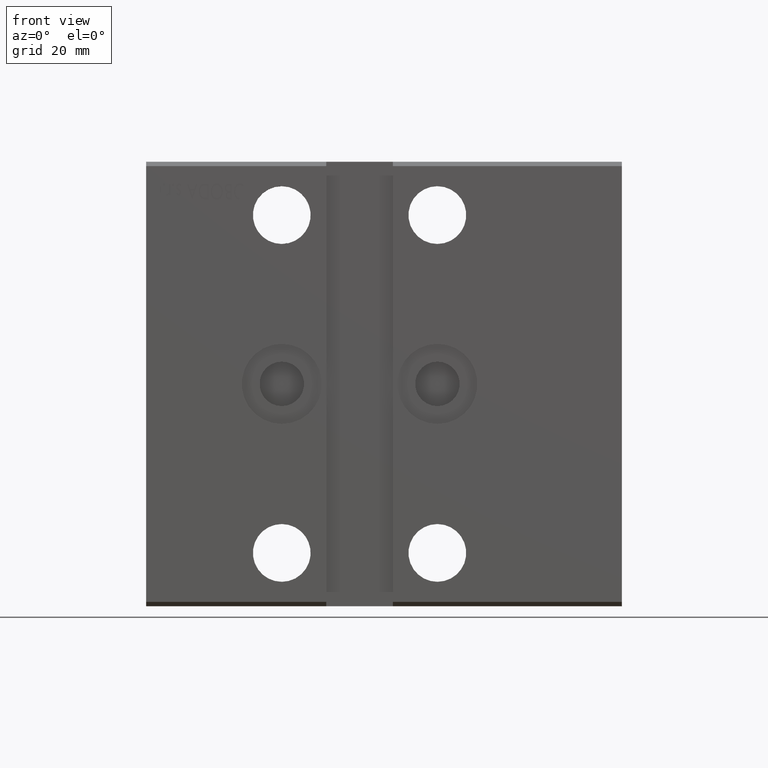
[diagram: clean part render]
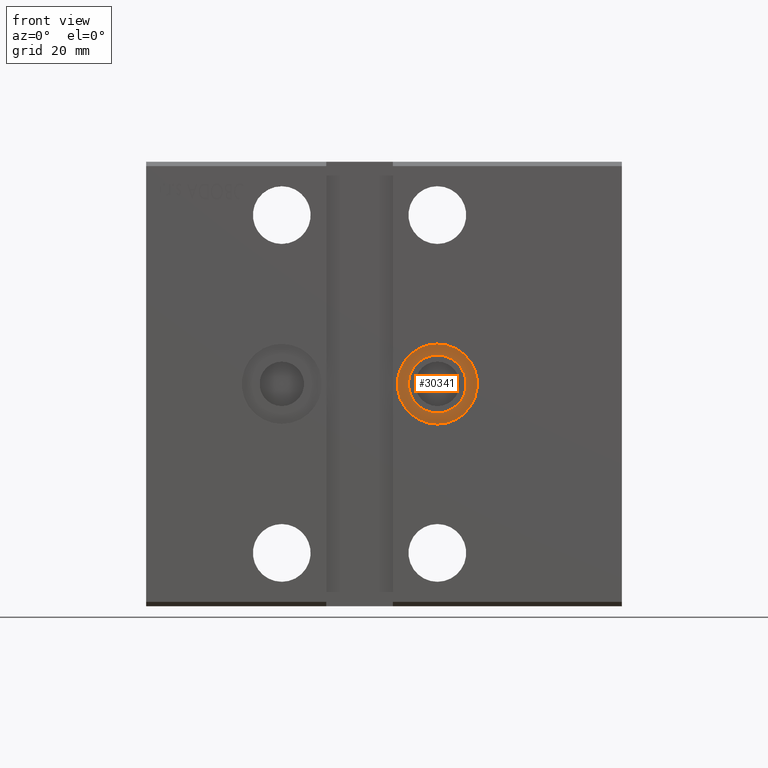
[diagram: same view with one face highlighted and labeled with its STEP entity id]
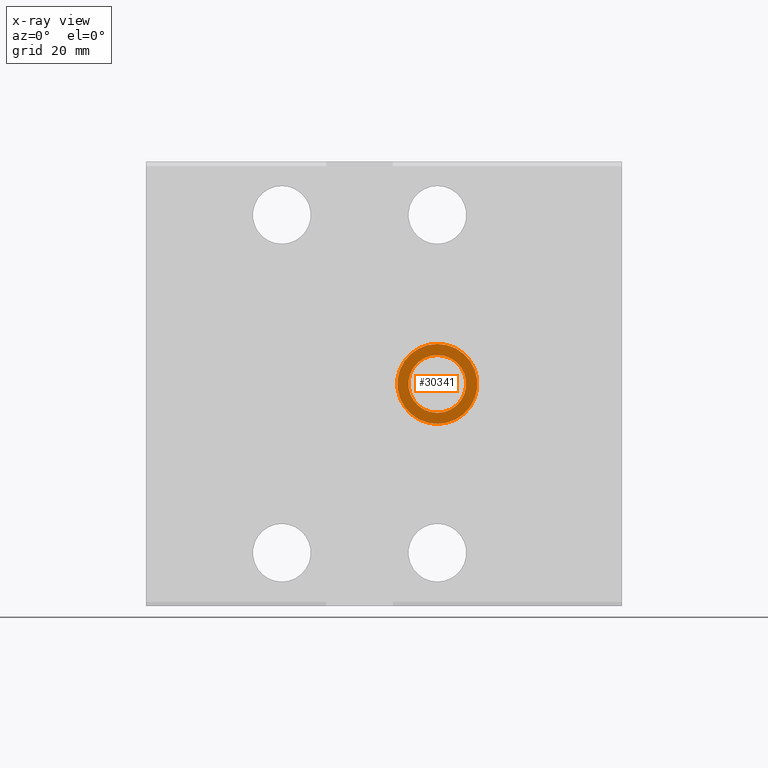
[diagram: x-ray of the same camera — body ghosted, the highlighted face saturated]
A machine part, front view. The second image highlights one B-rep face of the part: STEP entity #30341.
The next image is the same camera in x-ray: the body ghosted, the highlighted face saturated — about 0% of this face is hidden behind the body in this view.
In plain terms, the highlighted planar face has unit normal (-0, 1, 0).
Its self-contained STEP definition (entity closure, byte-faithful):
#246 = ORIENTED_EDGE ( 'NONE', *, *, #31917, .T. ) ;
#1539 = AXIS2_PLACEMENT_3D ( 'NONE', #2017, #7778, #33349 ) ;
#1706 = FACE_OUTER_BOUND ( 'NONE', #20157, .T. ) ;
#2017 = CARTESIAN_POINT ( 'NONE',  ( 65.50000000000001421, -36.10000000000001563, -2.575531285736965719E-15 ) ) ;
#2913 = CIRCLE ( 'NONE', #18015, 6.500000000000001776 ) ;
#2988 = CARTESIAN_POINT ( 'NONE',  ( 65.50000000000001421, -36.10000000000001563, 8.999999999999994671 ) ) ;
#4836 = AXIS2_PLACEMENT_3D ( 'NONE', #27044, #17352, #14268 ) ;
#5202 = PLANE ( 'NONE',  #4836 ) ;
#6338 = CIRCLE ( 'NONE', #11593, 8.999999999999996447 ) ;
#6359 = VERTEX_POINT ( 'NONE', #2988 ) ;
#7778 = DIRECTION ( 'NONE',  ( -0.000000000000000000, 1.000000000000000000, -0.000000000000000000 ) ) ;
#8130 = CIRCLE ( 'NONE', #1539, 6.500000000000001776 ) ;
#10625 = DIRECTION ( 'NONE',  ( 0.000000000000000000, 0.000000000000000000, -1.000000000000000000 ) ) ;
#11087 = EDGE_LOOP ( 'NONE', ( #246, #19705 ) ) ;
#11593 = AXIS2_PLACEMENT_3D ( 'NONE', #35899, #26399, #39183 ) ;
#14268 = DIRECTION ( 'NONE',  ( 0.000000000000000000, -5.507058653894625853E-17, 1.000000000000000000 ) ) ;
#14467 = FACE_BOUND ( 'NONE', #11087, .T. ) ;
#14937 = DIRECTION ( 'NONE',  ( 0.000000000000000000, 0.000000000000000000, 1.000000000000000000 ) ) ;
#15671 = EDGE_CURVE ( 'NONE', #6359, #26997, #6338, .T. ) ;
#17352 = DIRECTION ( 'NONE',  ( -0.000000000000000000, 1.000000000000000000, 5.507058653894625853E-17 ) ) ;
#18015 = AXIS2_PLACEMENT_3D ( 'NONE', #32880, #32469, #10625 ) ;
#18091 = ORIENTED_EDGE ( 'NONE', *, *, #25389, .F. ) ;
#19705 = ORIENTED_EDGE ( 'NONE', *, *, #30850, .T. ) ;
#20157 = EDGE_LOOP ( 'NONE', ( #18091, #30447 ) ) ;
#22361 = CARTESIAN_POINT ( 'NONE',  ( 65.50000000000001421, -36.10000000000001563, 6.499999999999999112 ) ) ;
#25389 = EDGE_CURVE ( 'NONE', #26997, #6359, #25756, .T. ) ;
#25399 = CARTESIAN_POINT ( 'NONE',  ( 65.50000000000001421, -36.10000000000001563, -6.500000000000004441 ) ) ;
#25756 = CIRCLE ( 'NONE', #30384, 8.999999999999996447 ) ;
#26399 = DIRECTION ( 'NONE',  ( -0.000000000000000000, 1.000000000000000000, 5.507058653894625853E-17 ) ) ;
#26997 = VERTEX_POINT ( 'NONE', #28832 ) ;
#27044 = CARTESIAN_POINT ( 'NONE',  ( 65.50000000000001421, -36.10000000000001563, -2.575531285736965325E-15 ) ) ;
#28627 = VERTEX_POINT ( 'NONE', #25399 ) ;
#28832 = CARTESIAN_POINT ( 'NONE',  ( 65.50000000000001421, -36.10000000000001563, -8.999999999999998224 ) ) ;
#30341 = ADVANCED_FACE ( 'NONE', ( #1706, #14467 ), #5202, .F. ) ;
#30384 = AXIS2_PLACEMENT_3D ( 'NONE', #39871, #30796, #14937 ) ;
#30447 = ORIENTED_EDGE ( 'NONE', *, *, #15671, .F. ) ;
#30796 = DIRECTION ( 'NONE',  ( -0.000000000000000000, 1.000000000000000000, 5.507058653894625853E-17 ) ) ;
#30850 = EDGE_CURVE ( 'NONE', #37937, #28627, #8130, .T. ) ;
#31917 = EDGE_CURVE ( 'NONE', #28627, #37937, #2913, .T. ) ;
#32469 = DIRECTION ( 'NONE',  ( -0.000000000000000000, 1.000000000000000000, -0.000000000000000000 ) ) ;
#32880 = CARTESIAN_POINT ( 'NONE',  ( 65.50000000000001421, -36.10000000000001563, -2.575531285736965719E-15 ) ) ;
#33349 = DIRECTION ( 'NONE',  ( 0.000000000000000000, 0.000000000000000000, -1.000000000000000000 ) ) ;
#35899 = CARTESIAN_POINT ( 'NONE',  ( 65.50000000000001421, -36.10000000000001563, -2.575531285736965325E-15 ) ) ;
#37937 = VERTEX_POINT ( 'NONE', #22361 ) ;
#39183 = DIRECTION ( 'NONE',  ( 0.000000000000000000, 0.000000000000000000, 1.000000000000000000 ) ) ;
#39871 = CARTESIAN_POINT ( 'NONE',  ( 65.50000000000001421, -36.10000000000001563, -2.575531285736965325E-15 ) ) ;